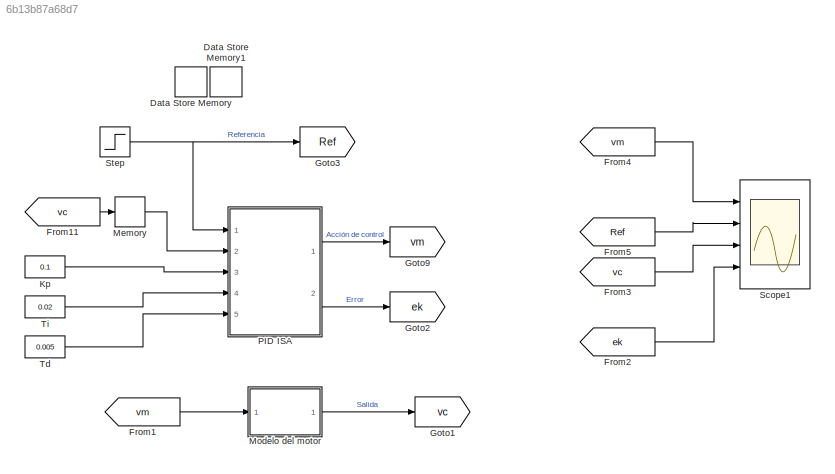
MODEL slx_6b13b87a68d7
KIND model
CONFIG AbsTol = auto
CONFIG EnableMultiTasking = off
CONFIG FixedStep = 0.02
CONFIG MaxStep = auto
CONFIG MinStep = auto
CONFIG RelTol = 1e-3
CONFIG SampleTimeConstraint = Unconstrained
CONFIG SolverName = FixedStepAuto
CONFIG StartTime = 0.0
CONFIG StopTime = 4
BLOCK [DataStoreMemory] Data Store Memory
  DataStoreName = uk_1
  OutDataTypeStr = double
  ReadBeforeWriteMsg = warning
  ShowAdditionalParam = off
  SignalType = real
  WriteAfterReadMsg = warning
  WriteAfterWriteMsg = warning
BLOCK [DataStoreMemory] Data Store Memory1
  DataStoreName = ek_1
  OutDataTypeStr = double
  ReadBeforeWriteMsg = warning
  ShowAdditionalParam = off
  SignalType = real
  WriteAfterReadMsg = warning
  WriteAfterWriteMsg = warning
BLOCK [From] From1
  GotoTag = vm
BLOCK [From] From11
  GotoTag = vc
BLOCK [From] From2
  GotoTag = ek
BLOCK [From] From3
  GotoTag = vc
BLOCK [From] From4
  GotoTag = vm
BLOCK [From] From5
  GotoTag = Ref
BLOCK [Goto] Goto1
  GotoTag = vc
BLOCK [Goto] Goto2
  GotoTag = ek
BLOCK [Goto] Goto3
  GotoTag = Ref
BLOCK [Goto] Goto9
  GotoTag = vm
BLOCK [Constant] Kp
  Value = 0.1
BLOCK [Memory] Memory
  InheritSampleTime = on
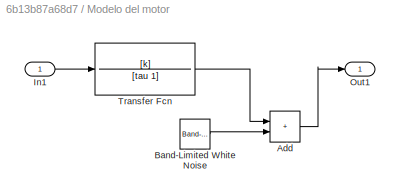
BLOCK [SubSystem] Modelo del motor
  Ports = [1, 1]
  RequestExecContextInheritance = off
BLOCK [Sum] Modelo del motor/Add
  IconShape = rectangular
  Ports = [2, 1]
BLOCK [Reference] Modelo del motor/Band-Limited White Noise  REF=simulink/Sources/Band-Limited
White Noise
  Ports = [0, 1]
  SourceBlock = simulink/Sources/Band-Limited\nWhite Noise
  SourceProductBaseCode = SL
  SourceType = Band-Limited White Noise.
BLOCK [Inport] Modelo del motor/In1
BLOCK [Outport] Modelo del motor/Out1
  VectorParamsAs1DForOutWhenUnconnected = off
BLOCK [TransferFcn] Modelo del motor/Transfer Fcn
  Denominator = [tau 1]
  Numerator = [k]
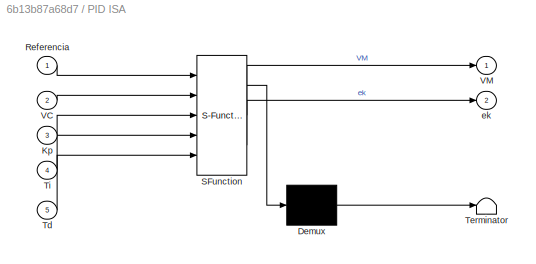
BLOCK [SubSystem] PID ISA
  ErrorFcn = Stateflow.Translate.translate
  MinAlgLoopOccurrences = on
  PermitHierarchicalResolution = ExplicitOnly
  Ports = [5, 2]
  RequestExecContextInheritance = off
  SFBlockType = MATLAB Function
  SystemSampleTime = 0.02
  TreatAsAtomicUnit = on
BLOCK [Demux] PID ISA/ Demux 
  Outputs = 1
  Ports = [1, 1]
BLOCK [S-Function] PID ISA/ SFunction 
  EnableBusSupport = on
  FunctionName = sf_sfun
  PortCounts = [5 3]
  Ports = [5, 3]
  SFcnIsStateOwnerBlock = off
  SFunctionDeploymentMode = off
  Tag = Stateflow S-Function 1
BLOCK [Terminator] PID ISA/ Terminator 
BLOCK [Inport] PID ISA/Kp
  Port = 3
BLOCK [Inport] PID ISA/Referencia
BLOCK [Inport] PID ISA/Td
  Port = 5
BLOCK [Inport] PID ISA/Ti
  Port = 4
BLOCK [Inport] PID ISA/VC
  Port = 2
BLOCK [Outport] PID ISA/VM
  VectorParamsAs1DForOutWhenUnconnected = off
BLOCK [Outport] PID ISA/ek
  Port = 2
  VectorParamsAs1DForOutWhenUnconnected = off
BLOCK [Scope] Scope1
  Floating = off
  NumInputPorts = 4
  Ports = [4]
  ScopeSpecificationString = Simulink.scopes.TimeScopeBlockCfg('CurrentConfiguration', extmgr.ConfigurationSet(extmgr.Configuration('Core','General UI',true),extmgr.Configuration('Core','Source UI',true),extmgr.Configuration('Sources','WiredSimulink',true,'DataLoggingVariableName','ScopeData1'),extmgr.Configuration('Visuals','Time Domain',true,'SerializedDisplays',{struct('MinYLimReal','-8.07279','MaxYLimReal','70.6331','YLab...<+2153ch>
BLOCK [Step] Step
  After = 10
  SampleTime = 0
BLOCK [Constant] Td
  Value = 0.005
BLOCK [Constant] Ti
  Value = 0.02
LINE From11:1 -> Memory:1
LINE From1:1 -> Modelo del motor:1
LINE From2:1 -> Scope1:4
LINE From3:1 -> Scope1:3
LINE From4:1 -> Scope1:1
LINE From5:1 -> Scope1:2
LINE Kp:1 -> PID ISA:3
LINE Memory:1 -> PID ISA:2
LINE Modelo del motor/Add:1 -> Modelo del motor/Out1:1
LINE Modelo del motor/Band-Limited White Noise:1 -> Modelo del motor/Add:2
LINE Modelo del motor/In1:1 -> Modelo del motor/Transfer Fcn:1
LINE Modelo del motor/Transfer Fcn:1 -> Modelo del motor/Add:1
LINE Modelo del motor:1 -> Goto1:1
LINE PID ISA:1 -> Goto9:1
LINE PID ISA:2 -> Goto2:1
NET Step:1 -> Goto3:1, PID ISA:1
LINE Td:1 -> PID ISA:5
LINE Ti:1 -> PID ISA:4
note: NET lines group one-source signal fan-out (src -> all destinations, sorted); 1:1 wires keep LINE
CHART PID ISA states=1 transitions=1
  STATE_LABEL 'eML_blk_kernel()'
  STATE_LABEL 'SCRIPT:\nfunction [VM,ek] = PID(Referencia,VC,Kp,Ti,Td)\nTs = 0.02;\nglobal uk_1 ek_1;\n\n% Calcular el Error COMPLETAR\nek = Referencia - VC ;\n% Calcular la Acción de control COMPLETAR\nup = Kp * ek;\nui = uk_1 + (Kp/Ti) * ek * Ts;\nud = Kp * Td * ((ek - ek_1) / Ts);\n\nuk =  up + ui + ud;\n\n%Saturar la Acción de Control (-100,+100) COMPLETAR\nif (uk >= (100))\n    uk = 100;\n    ui = uk_1;\nend     \nif (uk <= (...<+150ch>'
CHART  states=0 transitions=0
